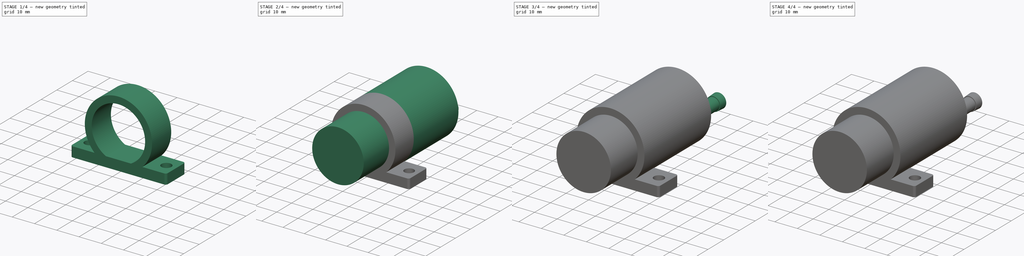
[diagram: build sequence overview — one tinted view per stage of 4, left to right]
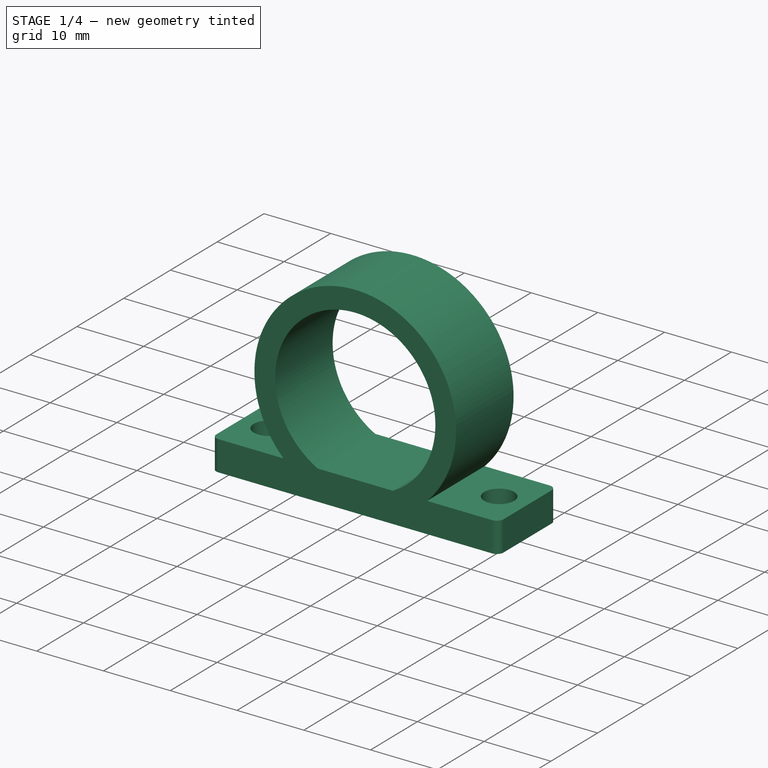
[diagram: stage 1 of 4 — iso view after this stage's code; geometry added in this stage tinted green]
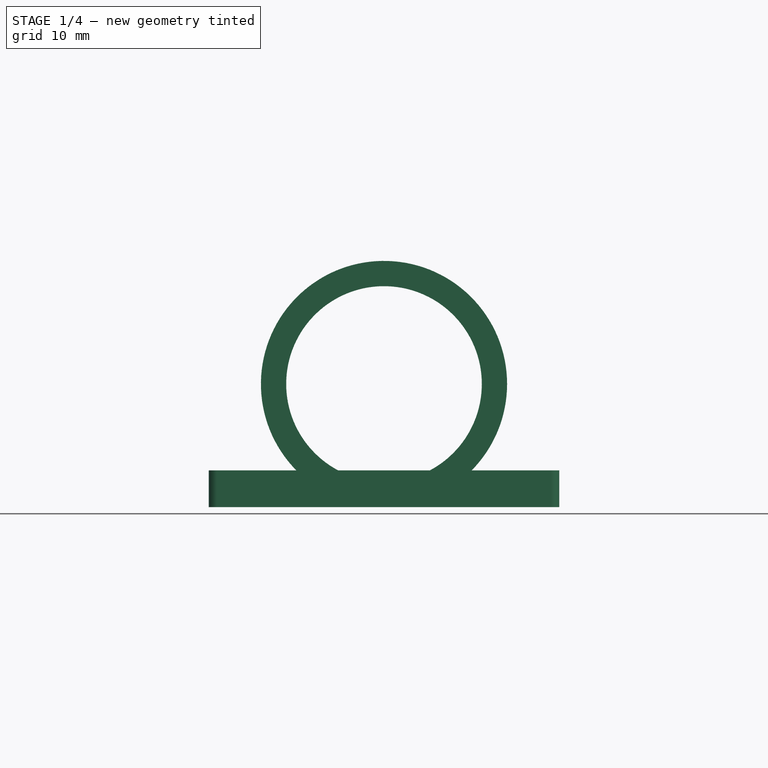
[diagram: stage 1 of 4 — front view after this stage's code; geometry added in this stage tinted green]
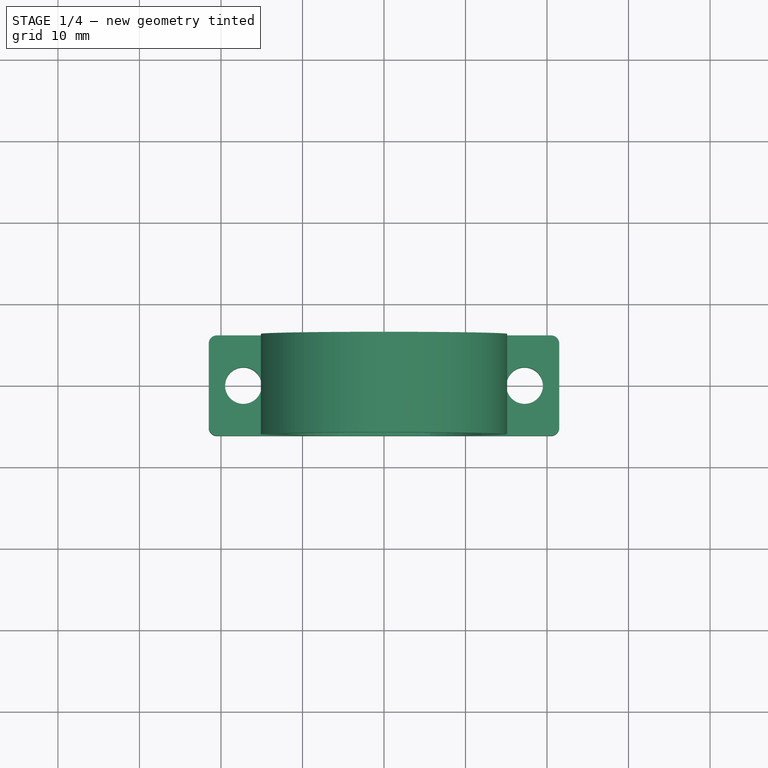
[diagram: stage 1 of 4 — top view after this stage's code; geometry added in this stage tinted green]
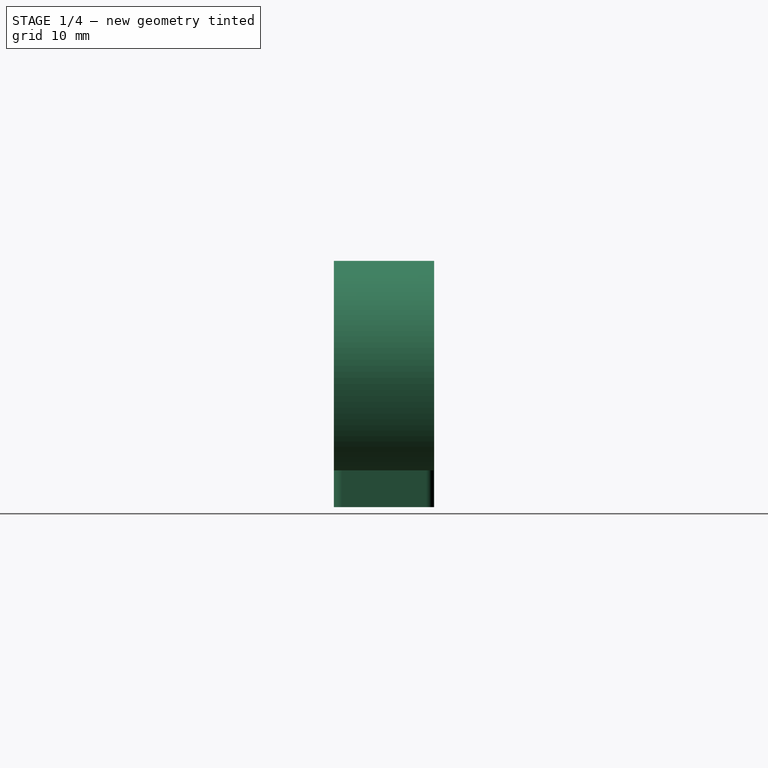
[diagram: stage 1 of 4 — right view after this stage's code; geometry added in this stage tinted green]
FCSTD DOCUMENT  (FreeCAD 0.22R36996 (Git))
Label: CrocSee 12V DC Diaphragm Transfer Pump 1.3 LPM
License: Creative Commons Attribution 4.0
LicenseURL: https://creativecommons.org/licenses/by/4.0/
objects: Sketcher::SketchObject×10, PartDesign::Pad×10, PartDesign::Body×1, Spreadsheet::Sheet×1
note: 31 computed .brp shape members not serialized (recipe doc carries the construction recipe); baked Part::Feature solids carry a one-line shape summary decoded from their .brp

FEATURE [Sketcher::SketchObject] Sketch  label="Bracket Base Sketch"
  AttachmentSupport = -> [XY_Plane]
  FullyConstrained = true
  MapMode = 5
  expr: Constraints[19] = <<config>>.CrocSeeBracketLength
  expr: Constraints[20] = <<config>>.CrocSeeBracketWidth
  expr: Constraints[21] = <<config>>.CrocSeeBracketCornerRadius
  expr: Constraints[23] = <<config>>.CrocSeeBracketMountingHoleDiameter
  expr: Constraints[26] = <<config>>.CrocSeeBracketMountingHoleSpacing
  sketch-geometry (12):
    g0: LineSegment StartX=-21.5 StartY=5.15 StartZ=0 EndX=-21.5 EndY=-5.15 EndZ=0
    g1: LineSegment StartX=-20.5 StartY=-6.15 StartZ=0 EndX=20.5 EndY=-6.15 EndZ=0
    g2: LineSegment StartX=21.5 StartY=-5.15 StartZ=0 EndX=21.5 EndY=5.15 EndZ=0
    g3: LineSegment StartX=20.5 StartY=6.15 StartZ=0 EndX=-20.5 EndY=6.15 EndZ=0
    g4: ArcOfCircle CenterX=-20.5 CenterY=5.15 CenterZ=0 NormalX=0 NormalY=0 NormalZ=1 AngleXU=0 Radius=1 StartAngle=1.5708 EndAngle=3.14159
    g5: ArcOfCircle CenterX=-20.5 CenterY=-5.15 CenterZ=0 NormalX=0 NormalY=0 NormalZ=1 AngleXU=0 Radius=1 StartAngle=3.14159 EndAngle=4.71239
    g6: ArcOfCircle CenterX=20.5 CenterY=-5.15 CenterZ=0 NormalX=0 NormalY=0 NormalZ=1 AngleXU=0 Radius=1 StartAngle=4.71239 EndAngle=6.28319
    g7: ArcOfCircle CenterX=20.5 CenterY=5.15 CenterZ=0 NormalX=0 NormalY=0 NormalZ=1 AngleXU=0 Radius=1 StartAngle=3e-16 EndAngle=1.5708
    g8: GeomPoint X=-21.5 Y=6.15 Z=0
    g9: GeomPoint X=21.5 Y=-6.15 Z=0
    g10: Circle CenterX=-17.25 CenterY=0 CenterZ=0 NormalX=0 NormalY=0 NormalZ=1 AngleXU=0 Radius=2.25
    g11: Circle CenterX=17.25 CenterY=0 CenterZ=0 NormalX=0 NormalY=0 NormalZ=1 AngleXU=0 Radius=2.25
  constraints (28):
    c: Tangent(g0,g4) = -1.5708
    c: Tangent(g0,g5) = -1.5708
    c: Tangent(g1,g5) = -1.5708
    c: Tangent(g1,g6) = -1.5708
    c: Tangent(g2,g6) = -1.5708
    c: Tangent(g2,g7) = -1.5708
    c: Tangent(g3,g7) = -1.5708
    c: Tangent(g3,g4) = -1.5708
    c: Vertical(g0)
    c: Vertical(g2)
    c: Horizontal(g1)
    c: Horizontal(g3)
    c: Equal(g4,g5)
    c: Equal(g5,g6)
    c: Equal(g6,g7)
    c: PointOnObject(g8,g0)
    c: PointOnObject(g8,g3)
    c: PointOnObject(g9,g1)
    c: PointOnObject(g9,g2)
    c: Distance(g0,g2) = 43
    c: Distance(g1,g3) = 12.3
    c: Radius(g5) = 1
    c: Symmetric(g4,g6,g-1)
    c: Radius(g10) = 2.25
    c: PointOnObject(g10,g-1)
    c: Symmetric(g11,g10,g-1)
    c: DistanceX(g10,g11) = 34.5
    c: Equal(g11,g10)
FEATURE [PartDesign::Pad] Pad  label="Bracket Base"
  Direction = (0,0,1)
  Length = 4.5
  Length2 = 10
  Profile = -> Sketch
  ReferenceAxis = -> Sketch [N_Axis]
  Suppressed = false
  Type = 0
  expr: Length = <<config>>.CrocSeeBracketBaseThickness
FEATURE [Sketcher::SketchObject] Sketch001  label="Bracket Ring Sketch"
  AttachmentOffset = pos=(0,0,6.15) rot=(0,0,1;0rad)
  AttachmentSupport = -> [XZ_Plane]
  FullyConstrained = true
  MapMode = 5
  Placement = pos=(0,-6.15,1.4e-15) rot=(1,0,0;1.5708rad)
  expr: .AttachmentOffset.Base.z = <<config>>.CrocSeeBracketWidth / 2
  expr: Constraints[0] = <<config>>.CrocSeeBracketRingOuterDiameter
  expr: Constraints[4] = <<config>>.CrocSeeBracketRingInnerDiameter
  sketch-geometry (4):
    g0: Circle CenterX=0 CenterY=15.1 CenterZ=0 NormalX=0 NormalY=0 NormalZ=1 AngleXU=0 Radius=15.1
    g1: GeomPoint X=0 Y=0 Z=0
    g2: Circle CenterX=0 CenterY=15.1 CenterZ=0 NormalX=0 NormalY=0 NormalZ=1 AngleXU=0 Radius=12
    g3: GeomPoint X=0 Y=15.1 Z=0
  constraints (7):
    c: Radius(g0) = 15.1
    c: PointOnObject(g0,g-2)
    c: PointOnObject(g1,g0)
    c: Coincident(g-1,g1)
    c: Radius(g2) = 12
    c: Coincident(g2,g0)
    c: Coincident(g3,g0)
FEATURE [PartDesign::Pad] Pad001  label="Bracket Ring"
  BaseFeature = -> Pad
  Direction = (0,-1,2e-16)
  Length = 12.3
  Length2 = 10
  Profile = -> Sketch001
  ReferenceAxis = -> Sketch001 [N_Axis]
  Reversed = true
  Suppressed = false
  Type = 0
  expr: Length = <<config>>.CrocSeeBracketWidth
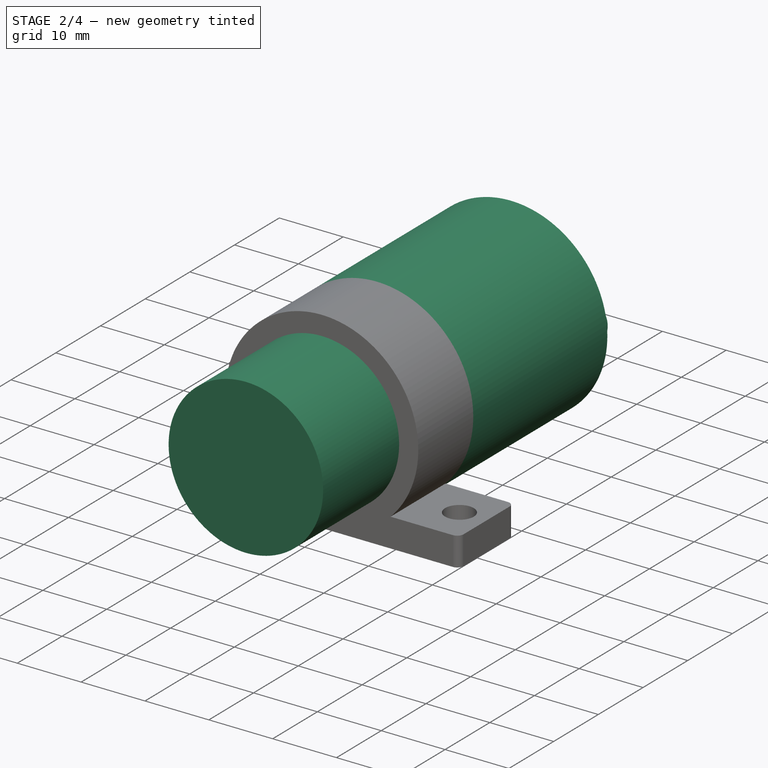
[diagram: stage 2 of 4 — iso view after this stage's code; geometry added in this stage tinted green]
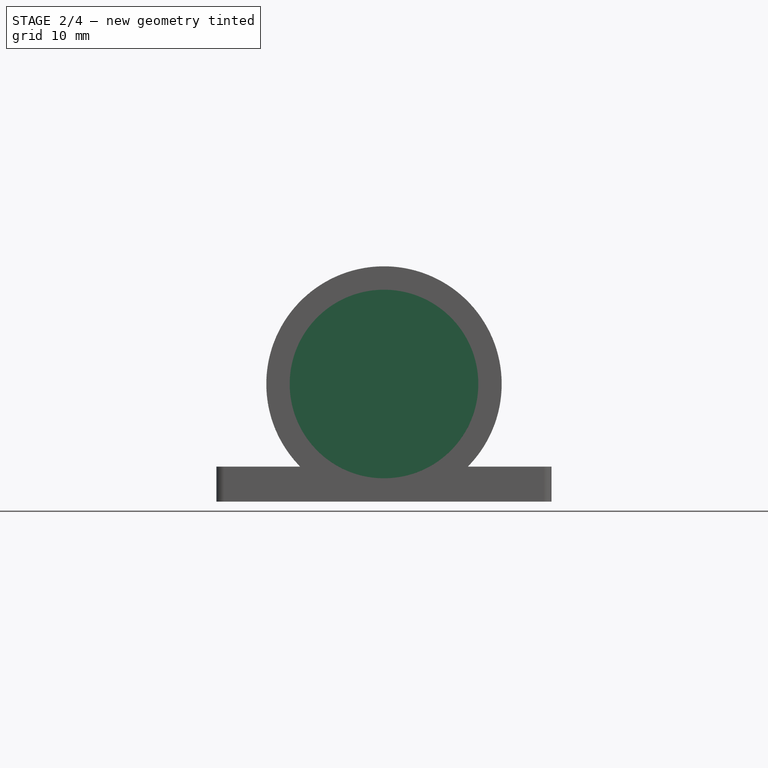
[diagram: stage 2 of 4 — front view after this stage's code; geometry added in this stage tinted green]
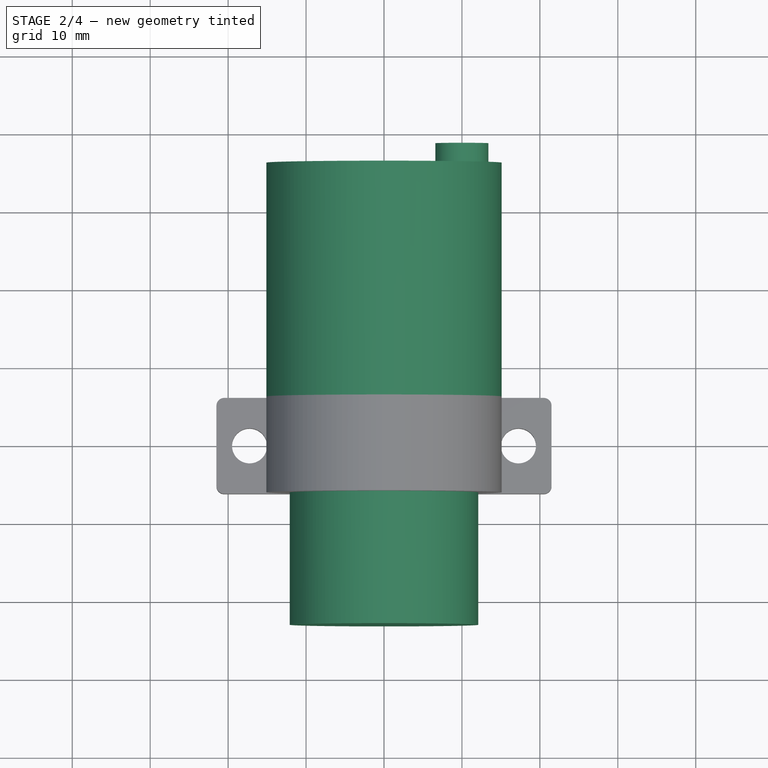
[diagram: stage 2 of 4 — top view after this stage's code; geometry added in this stage tinted green]
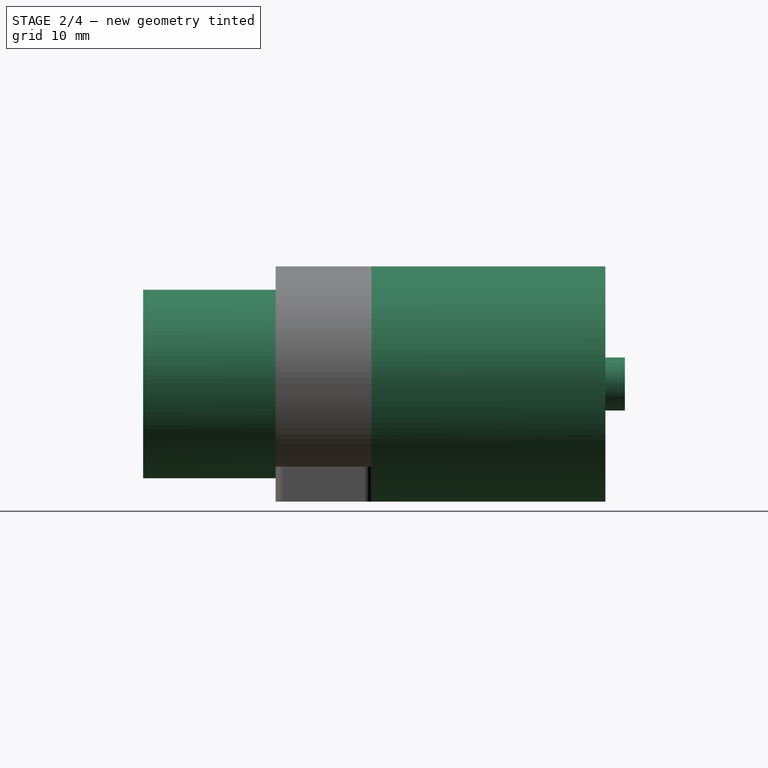
[diagram: stage 2 of 4 — right view after this stage's code; geometry added in this stage tinted green]
FEATURE [Sketcher::SketchObject] Sketch002  label="Body Part 1 Sketch"
  AttachmentOffset = pos=(0,0,23.15) rot=(0,0,1;0rad)
  AttachmentSupport = -> [XZ_Plane]
  ExternalGeometry = -> [Sketch001]
  FullyConstrained = true
  MapMode = 5
  Placement = pos=(0,-23.15,5.1e-15) rot=(1,0,0;1.5708rad)
  expr: .AttachmentOffset.Base.z = <<config>>.CrocSeeBracketOffset
  expr: Constraints[0] = <<config>>.CrocSeeBodyPart1Radius
  sketch-geometry (1):
    g0: Circle CenterX=0 CenterY=15.1 CenterZ=0 NormalX=0 NormalY=0 NormalZ=1 AngleXU=0 Radius=12.1
  constraints (2):
    c: Radius(g0) = 12.1
    c: Coincident(g0,g-3)
FEATURE [PartDesign::Pad] Pad002  label="Body Part 1"
  BaseFeature = -> Pad001
  Direction = (0,-1,2e-16)
  Length = 29.3
  Length2 = 10
  Profile = -> Sketch002
  ReferenceAxis = -> Sketch002 [N_Axis]
  Reversed = true
  Suppressed = false
  Type = 0
  expr: Length = <<config>>.CrocSeeBodyPart1Length
FEATURE [Sketcher::SketchObject] Sketch003  label="Body Part 2 Sketch"
  AttachmentOffset = pos=(0,0,-6.15) rot=(0,0,1;0rad)
  AttachmentSupport = -> [XZ_Plane]
  ExternalGeometry = -> [Sketch001]
  FullyConstrained = true
  MapMode = 5
  Placement = pos=(0,6.15,-1.4e-15) rot=(1,0,0;1.5708rad)
  expr: .AttachmentOffset.Base.z = -<<config>>.CrocSeeBracketWidth / 2
  expr: Constraints[0] = <<config>>.CrocSeeBodyPart2Radius
  sketch-geometry (1):
    g0: Circle CenterX=0 CenterY=15.1 CenterZ=0 NormalX=0 NormalY=0 NormalZ=1 AngleXU=0 Radius=15.1
  constraints (2):
    c: Radius(g0) = 15.1
    c: Coincident(g0,g-3)
FEATURE [PartDesign::Pad] Pad003  label="Body Part 2"
  BaseFeature = -> Pad002
  Direction = (0,-1,2e-16)
  Length = 30
  Length2 = 10
  Profile = -> Sketch003
  ReferenceAxis = -> Sketch003 [N_Axis]
  Reversed = true
  Suppressed = false
  Type = 0
  expr: Length = <<config>>.CrocSeeBodyPart2Length
FEATURE [Sketcher::SketchObject] Sketch004  label="Body Connector 2 Base Sketch"
  AttachmentOffset = pos=(0,0,-36.15) rot=(0,0,1;0rad)
  AttachmentSupport = -> [XZ_Plane]
  ExternalGeometry = -> [Sketch001]
  FullyConstrained = true
  MapMode = 5
  Placement = pos=(0,36.15,-8e-15) rot=(1,0,0;1.5708rad)
  expr: .AttachmentOffset.Base.z = -<<config>>.CrocSeeBracketWidth / 2 - <<config>>.CrocSeeBodyPart2Length
  expr: Constraints[0] = <<config>>.CrocSeeBodyConnector2BaseOuterDiameter
  expr: Constraints[2] = <<config>>.CrocSeeBodyConnector2BaseInnerDiameter
  sketch-geometry (2):
    g0: Circle CenterX=0 CenterY=15.1 CenterZ=0 NormalX=0 NormalY=0 NormalZ=1 AngleXU=0 Radius=4.1
    g1: Circle CenterX=0 CenterY=15.1 CenterZ=0 NormalX=0 NormalY=0 NormalZ=1 AngleXU=0 Radius=1.3
  constraints (4):
    c: Radius(g0) = 4.1
    c: Coincident(g0,g-3)
    c: Radius(g1) = 1.3
    c: Coincident(g1,g0)
FEATURE [Sketcher::SketchObject] Sketch005  label="Body Connector 1 Base Sketch"
  AttachmentOffset = pos=(0,0,-36.15) rot=(0,0,1;0rad)
  AttachmentSupport = -> [XZ_Plane]
  ExternalGeometry = -> [Sketch001]
  FullyConstrained = true
  MapMode = 5
  Placement = pos=(0,36.15,-8e-15) rot=(1,0,0;1.5708rad)
  expr: .AttachmentOffset.Base.z = -<<config>>.CrocSeeBracketWidth / 2 - <<config>>.CrocSeeBodyPart2Length
  expr: Constraints[0] = <<config>>.CrocSeeBodyConnector1BaseInnerDiameter
  expr: Constraints[2] = <<config>>.CrocSeeBodyConnector1BaseOuterDiameter
  expr: Constraints[8] = <<config>>.CrocSeeBodyConnector1DistanceFromCenter
  sketch-geometry (4):
    g0: GeomPoint X=10 Y=15.1 Z=0
    g1: Circle CenterX=10 CenterY=15.1 CenterZ=0 NormalX=0 NormalY=0 NormalZ=1 AngleXU=0 Radius=1.7
    g2: Circle CenterX=10 CenterY=15.1 CenterZ=0 NormalX=0 NormalY=0 NormalZ=1 AngleXU=0 Radius=3.4
    g3: LineSegment StartX=12 StartY=15.1 StartZ=0 EndX=-12 EndY=15.1 EndZ=0
  constraints (10):
    c: Radius(g1) = 1.7
    c: Coincident(g1,g0)
    c: Radius(g2) = 3.4
    c: Coincident(g2,g0)
    c: PointOnObject(g-3,g3)
    c: PointOnObject(g3,g-4)
    c: PointOnObject(g3,g-4)
    c: PointOnObject(g0,g3)
    c: DistanceX(g-4,g0) = 10
    c: Horizontal(g3)
FEATURE [PartDesign::Pad] Pad004  label="Body Connector 1 Base"
  BaseFeature = -> Pad003
  Direction = (0,-1,2e-16)
  Length = 2.5
  Length2 = 10
  Profile = -> Sketch005
  ReferenceAxis = -> Sketch005 [N_Axis]
  Reversed = true
  Suppressed = false
  Type = 0
  expr: Length = <<config>>.CrocSeeBodyConnector1BaseHeight
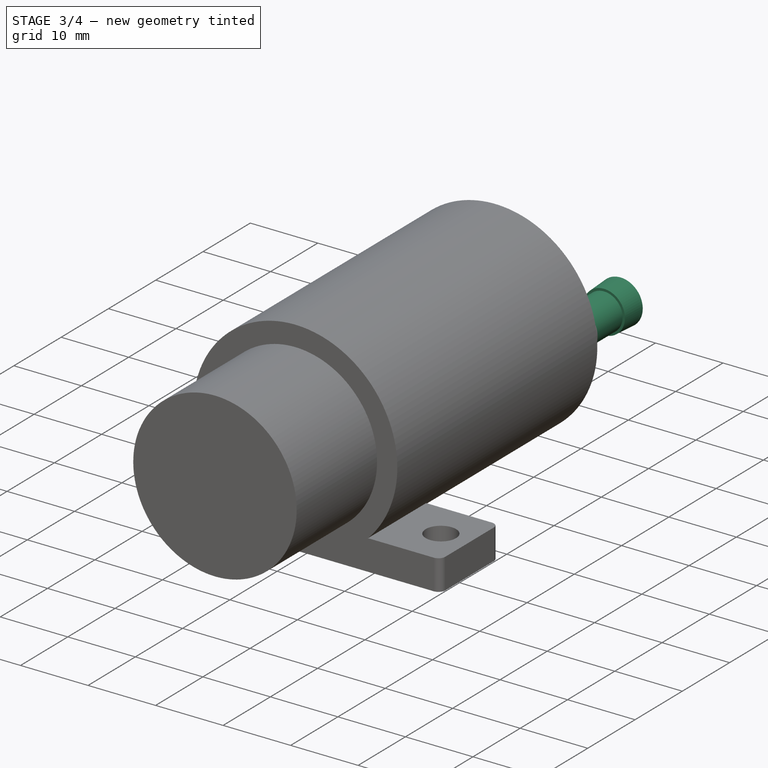
[diagram: stage 3 of 4 — iso view after this stage's code; geometry added in this stage tinted green]
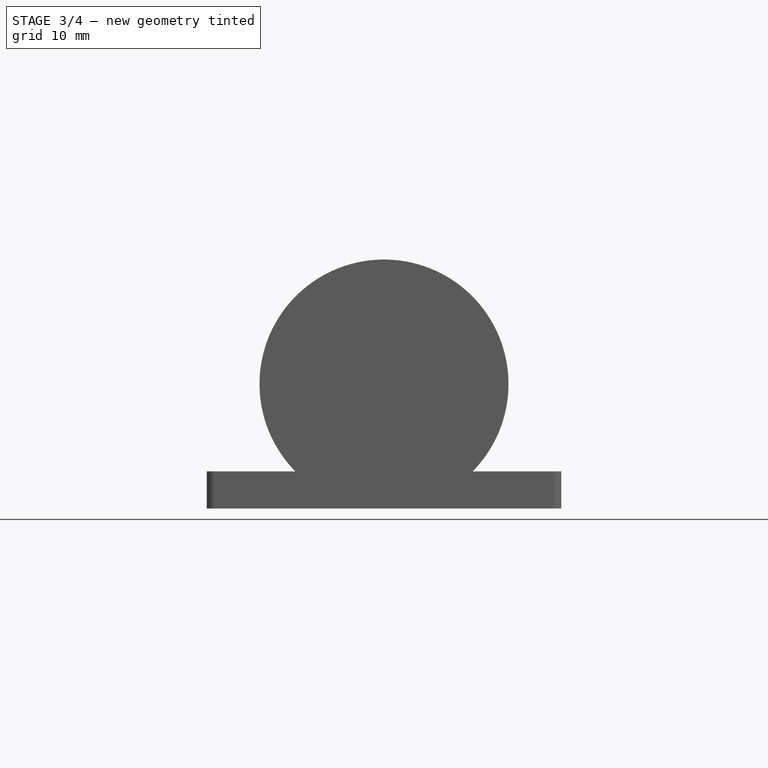
[diagram: stage 3 of 4 — front view after this stage's code; geometry added in this stage tinted green]
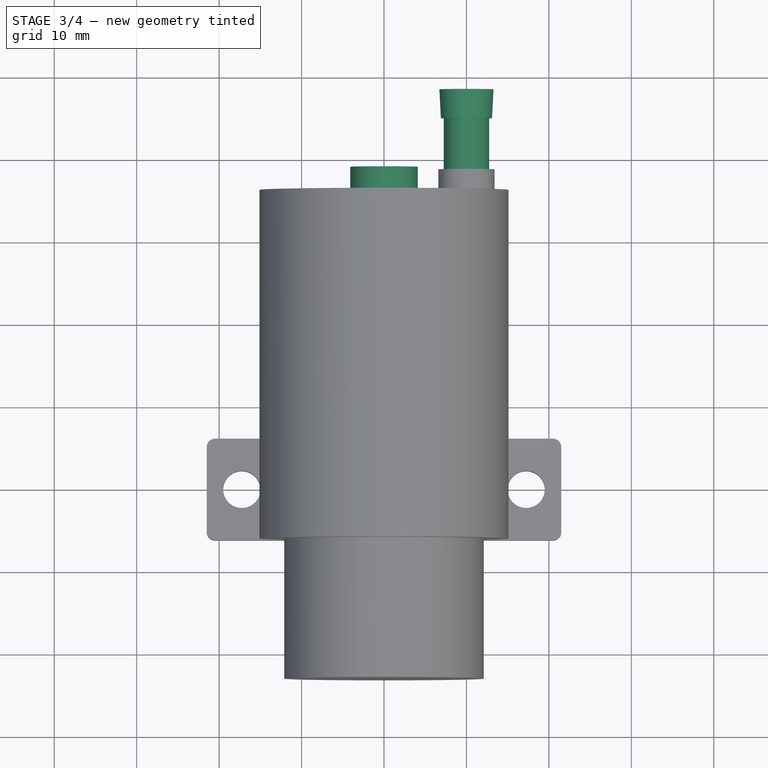
[diagram: stage 3 of 4 — top view after this stage's code; geometry added in this stage tinted green]
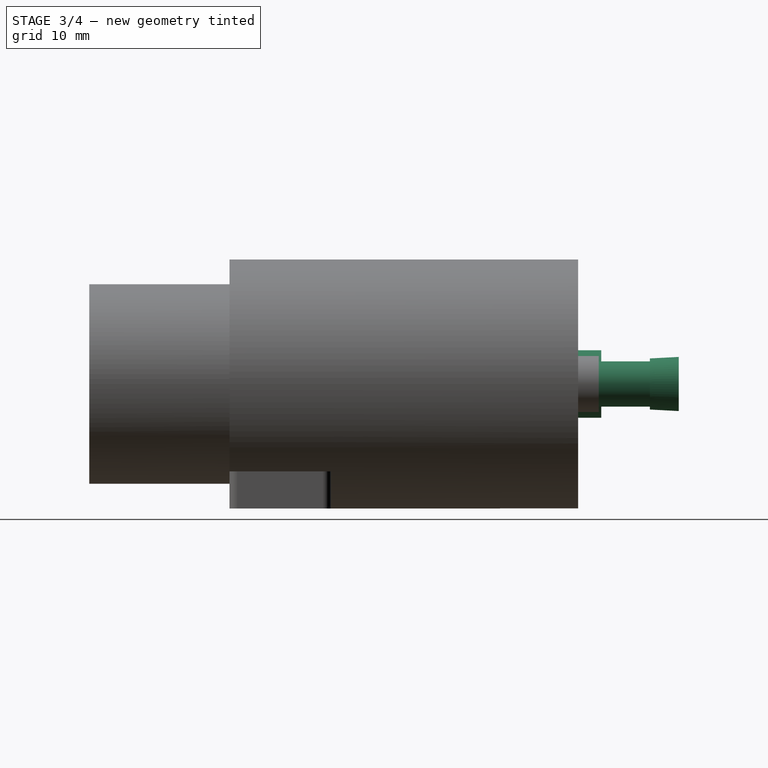
[diagram: stage 3 of 4 — right view after this stage's code; geometry added in this stage tinted green]
FEATURE [PartDesign::Pad] Pad005  label="Body Connector 2 Base"
  BaseFeature = -> Pad004
  Direction = (0,-1,2e-16)
  Length = 2.8
  Length2 = 10
  Profile = -> Sketch004
  ReferenceAxis = -> Sketch004 [N_Axis]
  Reversed = true
  Suppressed = false
  Type = 0
  expr: Length = <<config>>.CrocSeeBodyConnector2BaseHeight
FEATURE [Sketcher::SketchObject] Sketch006  label="Body Connector 1 Part 2 Sketch"
  AttachmentOffset = pos=(0,0,-38.65) rot=(0,0,1;0rad)
  AttachmentSupport = -> [XZ_Plane]
  ExternalGeometry = -> [Sketch001,Sketch005]
  FullyConstrained = true
  MapMode = 5
  Placement = pos=(0,38.65,-8.6e-15) rot=(1,0,0;1.5708rad)
  expr: .AttachmentOffset.Base.z = -<<config>>.CrocSeeBracketWidth / 2 - <<config>>.CrocSeeBodyPart2Length - <<config>>.CrocSeeBodyConnector1BaseHeight
  expr: Constraints[0] = <<config>>.CrocSeeBodyConnector1Part2OuterDiameter
  expr: Constraints[1] = <<config>>.CrocSeeBodyConnector1Part2InnerDiameter
  sketch-geometry (2):
    g0: Circle CenterX=10 CenterY=15.1 CenterZ=0 NormalX=0 NormalY=0 NormalZ=1 AngleXU=0 Radius=2.75
    g1: Circle CenterX=10 CenterY=15.1 CenterZ=0 NormalX=0 NormalY=0 NormalZ=1 AngleXU=0 Radius=1.75
  constraints (4):
    c: Radius(g0) = 2.75
    c: Radius(g1) = 1.75
    c: Coincident(g0,g-4)
    c: Coincident(g1,g0)
FEATURE [Sketcher::SketchObject] Sketch007  label="Body Connector Part 3 Sketch"
  AttachmentOffset = pos=(0,0,-44.85) rot=(0,0,1;0rad)
  AttachmentSupport = -> [XZ_Plane]
  ExternalGeometry = -> [Sketch005]
  FullyConstrained = true
  MapMode = 5
  Placement = pos=(0,44.85,-1e-14) rot=(1,0,0;1.5708rad)
  expr: .AttachmentOffset.Base.z = -<<config>>.CrocSeeBracketWidth / 2 - <<config>>.CrocSeeBodyPart2Length - <<config>>.CrocSeeBodyConnector1BaseHeight - <<config>>.CrocSeeBodyConnector1Part2Height
  sketch-geometry (2):
    g0: Circle CenterX=10 CenterY=15.1 CenterZ=0 NormalX=0 NormalY=0 NormalZ=1 AngleXU=0 Radius=1.75
    g1: Circle CenterX=10 CenterY=15.1 CenterZ=0 NormalX=0 NormalY=0 NormalZ=1 AngleXU=0 Radius=3.1
  constraints (4):
    c: Radius(g0) = 1.75
    c: Coincident(g0,g-3)
    c: Radius(g1) = 3.1
    c: Coincident(g1,g0)
FEATURE [Sketcher::SketchObject] Sketch008  label="Body Connector 2 Sketch 2"
  AttachmentOffset = pos=(0,0,-38.95) rot=(0,0,1;0rad)
  AttachmentSupport = -> [XZ_Plane]
  ExternalGeometry = -> [Sketch001]
  FullyConstrained = true
  MapMode = 5
  Placement = pos=(0,38.95,-8.6e-15) rot=(1,0,0;1.5708rad)
  expr: .AttachmentOffset.Base.z = -<<config>>.CrocSeeBracketWidth / 2 - <<config>>.CrocSeeBodyPart2Length - <<config>>.CrocSeeBodyConnector2BaseHeight
  expr: Constraints[0] = <<config>>.CrocSeeBodyConnector2Part2InnerDiameter
  expr: Constraints[2] = <<config>>.CrocSeeBodyConnector2Part2OuterDiameter
  sketch-geometry (2):
    g0: Circle CenterX=0 CenterY=15.1 CenterZ=0 NormalX=0 NormalY=0 NormalZ=1 AngleXU=0 Radius=1.4
    g1: Circle CenterX=0 CenterY=15.1 CenterZ=0 NormalX=0 NormalY=0 NormalZ=1 AngleXU=0 Radius=2.75
  constraints (4):
    c: Radius(g0) = 1.4
    c: Coincident(g0,g-3)
    c: Radius(g1) = 2.75
    c: Coincident(g1,g0)
FEATURE [Sketcher::SketchObject] Sketch009  label="Body Connector 2 Sketch 3"
  AttachmentOffset = pos=(0,0,-43.25) rot=(0,0,1;0rad)
  AttachmentSupport = -> [XZ_Plane]
  ExternalGeometry = -> [Sketch001]
  FullyConstrained = true
  MapMode = 5
  Placement = pos=(0,43.25,-9.6e-15) rot=(1,0,0;1.5708rad)
  expr: .AttachmentOffset.Base.z = -<<config>>.CrocSeeBracketWidth / 2 - <<config>>.CrocSeeBodyPart2Length - <<config>>.CrocSeeBodyConnector2BaseHeight - <<config>>.CrocSeeBodyConnector2Part2Height
  expr: Constraints[0] = <<config>>.CrocSeeBodyConnector2Part3InnerDiameter
  expr: Constraints[2] = <<config>>.CrocSeeBodyConnector2Part3OuterDiameter
  sketch-geometry (2):
    g0: Circle CenterX=0 CenterY=15.1 CenterZ=0 NormalX=0 NormalY=0 NormalZ=1 AngleXU=0 Radius=1.4
    g1: Circle CenterX=0 CenterY=15.1 CenterZ=0 NormalX=0 NormalY=0 NormalZ=1 AngleXU=0 Radius=3.1
  constraints (4):
    c: Radius(g0) = 1.4
    c: Coincident(g0,g-3)
    c: Radius(g1) = 3.1
    c: Coincident(g1,g0)
FEATURE [PartDesign::Pad] Pad006  label="Body Connector 1 Part 2"
  BaseFeature = -> Pad005
  Direction = (0,-1,2e-16)
  Length = 6.2
  Length2 = 10
  Profile = -> Sketch006
  ReferenceAxis = -> Sketch006 [N_Axis]
  Reversed = true
  Suppressed = false
  Type = 0
  expr: Length = <<config>>.CrocSeeBodyConnector1Part2Height
FEATURE [PartDesign::Pad] Pad007  label="Body Connector 1 Part 3"
  BaseFeature = -> Pad006
  Direction = (0,-1,2e-16)
  Length = 3.5
  Length2 = 10
  Profile = -> Sketch007
  ReferenceAxis = -> Sketch007 [N_Axis]
  Reversed = true
  Suppressed = false
  TaperAngle = -3
  Type = 0
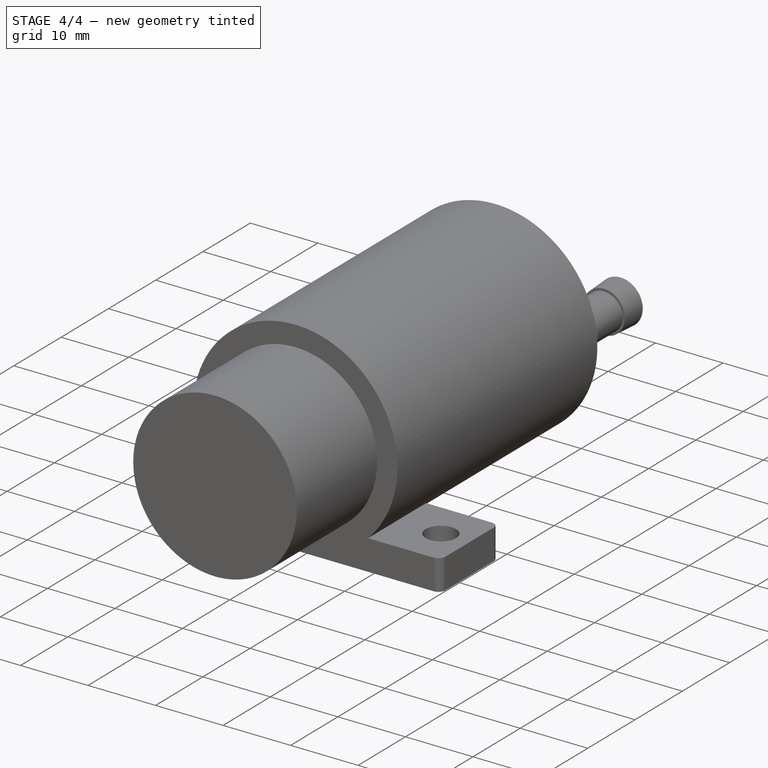
[diagram: stage 4 of 4 — iso view after this stage's code; geometry added in this stage tinted green]
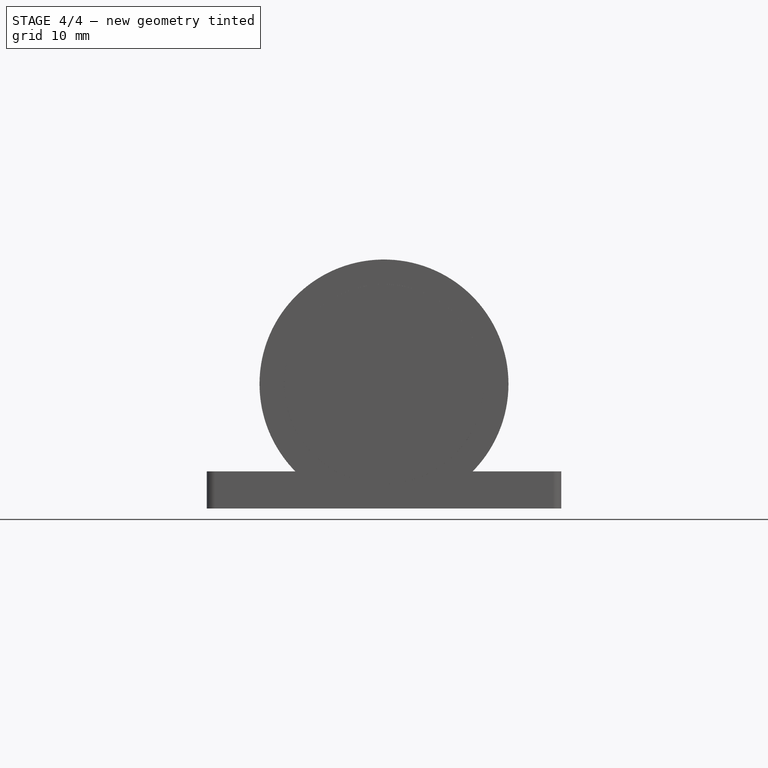
[diagram: stage 4 of 4 — front view after this stage's code; geometry added in this stage tinted green]
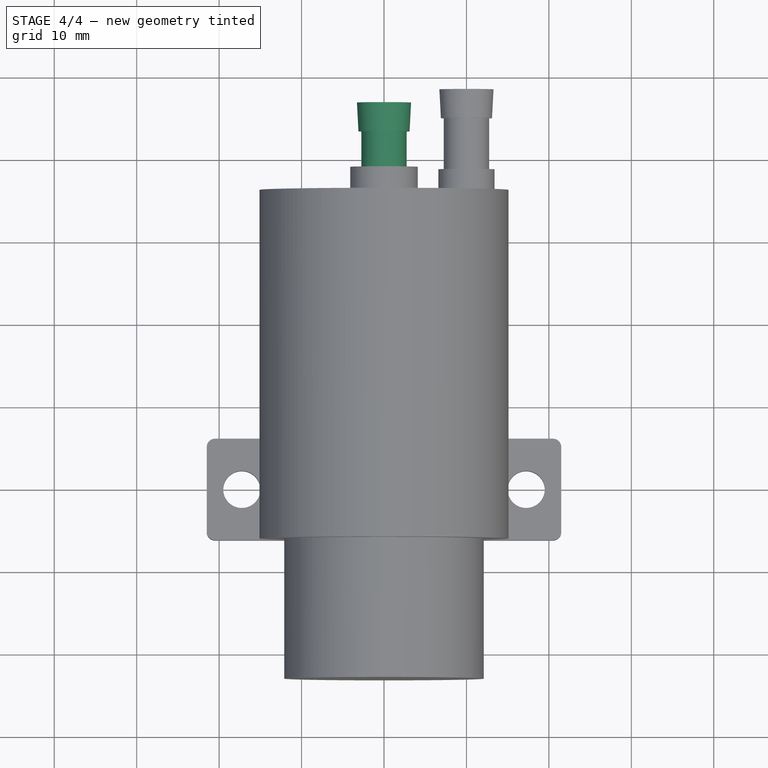
[diagram: stage 4 of 4 — top view after this stage's code; geometry added in this stage tinted green]
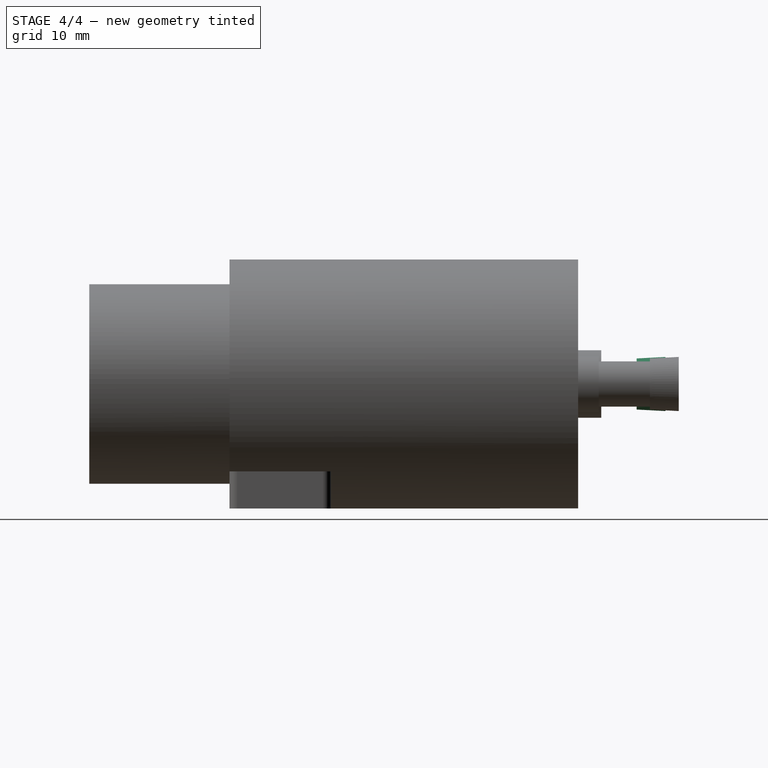
[diagram: stage 4 of 4 — right view after this stage's code; geometry added in this stage tinted green]
FEATURE [PartDesign::Pad] Pad008  label="Body Connector 2 Pad 2"
  BaseFeature = -> Pad007
  Direction = (0,-1,2e-16)
  Length = 4.3
  Length2 = 10
  Profile = -> Sketch008
  ReferenceAxis = -> Sketch008 [N_Axis]
  Reversed = true
  Suppressed = false
  Type = 0
  expr: Length = <<config>>.CrocSeeBodyConnector2Part2Height
FEATURE [PartDesign::Pad] Pad009  label="Body Connector 2 Pad 3"
  BaseFeature = -> Pad008
  Direction = (0,-1,2e-16)
  Length = 3.5
  Length2 = 10
  Profile = -> Sketch009
  ReferenceAxis = -> Sketch009 [N_Axis]
  Reversed = true
  Suppressed = false
  TaperAngle = -3
  Type = 0
  expr: Length = <<config>>.CrocSeeBodyConnector2Part3Height
FEATURE [PartDesign::Body] Body
  Group = -> [Sketch,Pad,Sketch001,Pad001,Sketch002,Pad002,Sketch003,Pad003,Sketch004,Sketch005,Pad004,Pad005,Sketch006,Pad006,Sketch007,Pad007,Sketch008,Pad008,Sketch009,Pad009]
  Origin = -> Origin
  Tip = -> Pad009
FEATURE [Spreadsheet::Sheet] Spreadsheet  label="config"
  cells = A2='CrocSeeBracketWidth; B2(CrocSeeBracketWidth)=12.3; A3='CrocSeeBracketLength; B3(CrocSeeBracketLength)=43; A4='CrocSeeBracketCornerRadius; B4(CrocSeeBracketCornerRadius)=1; A5='CrocSeeBracketMountingHoleSpacing; B5(CrocSeeBracketMountingHoleSpacing)=34.5; A6='CrocSeeBracketMountingHoleDiameter; B6(CrocSeeBracketMountingHoleDiameter)=2.25; A7='CrocSeeBracketBaseThickness; B7(CrocSeeBracketBaseThickness)=4.5; A8='CrocSeeBracketRingInnerDiameter; B8(CrocSeeBracketRingInnerDiameter)=12; A9='CrocSeeBracketRingOuterDiameter; B9(CrocSeeBracketRingOuterDiameter)=15.1; A10='CrocSeeBracketOffset; B10(CrocSeeBracketOffset)==CrocSeeBodyPart1Length - CrocSeeBracketWidth / 2; A11='CrocSeeBodyPart1Radius; B11(CrocSeeBodyPart1Radius)=12.1; A12='CrocSeeBodyPart1Length; B12(CrocSeeBodyPart1Length)=29.3; A13='CrocSeeBodyPart2Radius; B13(CrocSeeBodyPart2Radius)=15.1; A14='CrocSeeBodyPart2Length; B14(CrocSeeBodyPart2Length)=30; A15='CrocSeeBodyConnector1BaseHeight; B15(CrocSeeBodyConnector1BaseHeight)=2.5; A16='CrocSeeBodyConnector1BaseInnerDiameter; B16(CrocSeeBodyConnector1BaseInnerDiameter)=1.7; A17='CrocSeeBodyConnector1BaseOuterDiameter; B17(CrocSeeBodyConnector1BaseOuterDiameter)=3.4; A18='CrocSeeBodyConnector1DistanceFromCenter; B18(CrocSeeBodyConnector1DistanceFromCenter)=10; A19='CrocSeeBodyConnector2BaseHeight; B19(CrocSeeBodyConnector2BaseHeight)=2.8; A20='CrocSeeBodyConnector2BaseInnerDiameter; B20(CrocSeeBodyConnector2BaseInnerDiameter)=1.3; A21='CrocSeeBodyConnector2BaseOuterDiameter; B21(CrocSeeBodyConnector2BaseOuterDiameter)=4.1; A22='CrocSeeBodyConnector1Part2Height; B22(CrocSeeBodyConnector1Part2Height)=6.2; A23='CrocSeeBodyConnector1Part2InnerDiameter; B23(CrocSeeBodyConnector1Part2InnerDiameter)=1.75; A24='CrocSeeBodyConnector1Part2OuterDiameter; B24(CrocSeeBodyConnector1Part2OuterDiameter)=2.75; A25='CrocSeeBodyConnector2Part2Height; B25(CrocSeeBodyConnector2Part2Height)=4.3; A26='CrocSeeBodyConnector2Part2InnerDiameter; B26(CrocSeeBodyConnector2Part2InnerDiameter)=1.4; A27='CrocSeeBodyConnector2Part2OuterDiameter; B27(CrocSeeBodyConnector2Part2OuterDiameter)=2.75; A28='CrocSeeBodyConnector1Part3InnerDiameter; B28(CrocSeeBodyConnector1Part3InnerDiameter)=3.5; A29='CrocSeeBodyConnector1Part3InnerDiameter; B29(CrocSeeBodyConnector1Part3InnerDiametertor1Part3InnerDiameter)=1.75; A30='CrocSeeBodyConnector1Part3OuterDiameter; B30(CrocSeeBodyConnector1Part3OuterDiameter)=3.1; A31='CrocSeeBodyConnector2Part3Height; B31(CrocSeeBodyConnector2Part3Height)=3.5; A32='CrocSeeBodyConnector2Part3InnerDiameter; B32(CrocSeeBodyConnector2Part3InnerDiameter)=1.4; A33='CrocSeeBodyConnector2Part3OuterDiameter; B33(CrocSeeBodyConnector2Part3OuterDiameter)=3.1
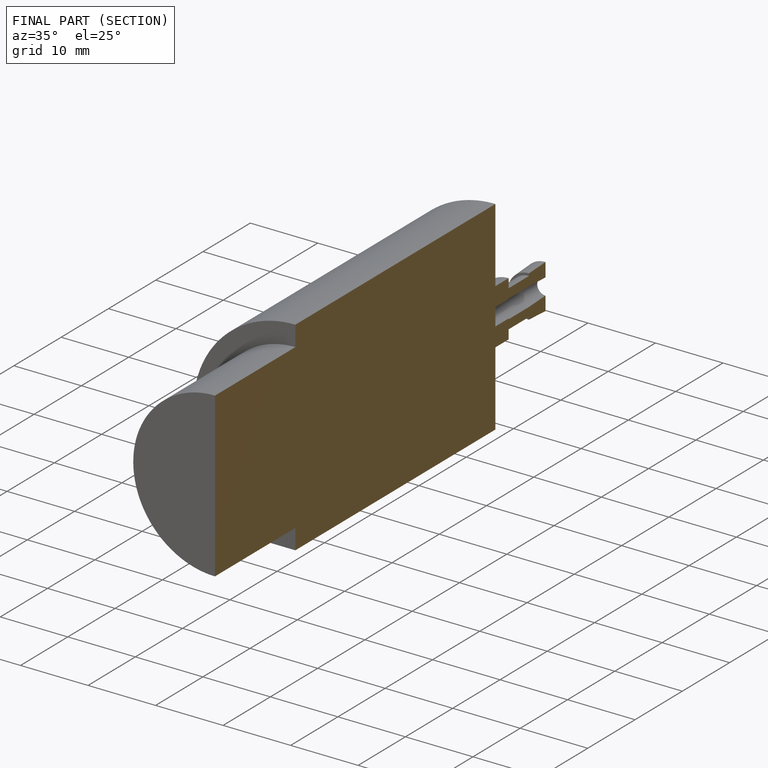
[diagram: finished part — half-section view (interior)]
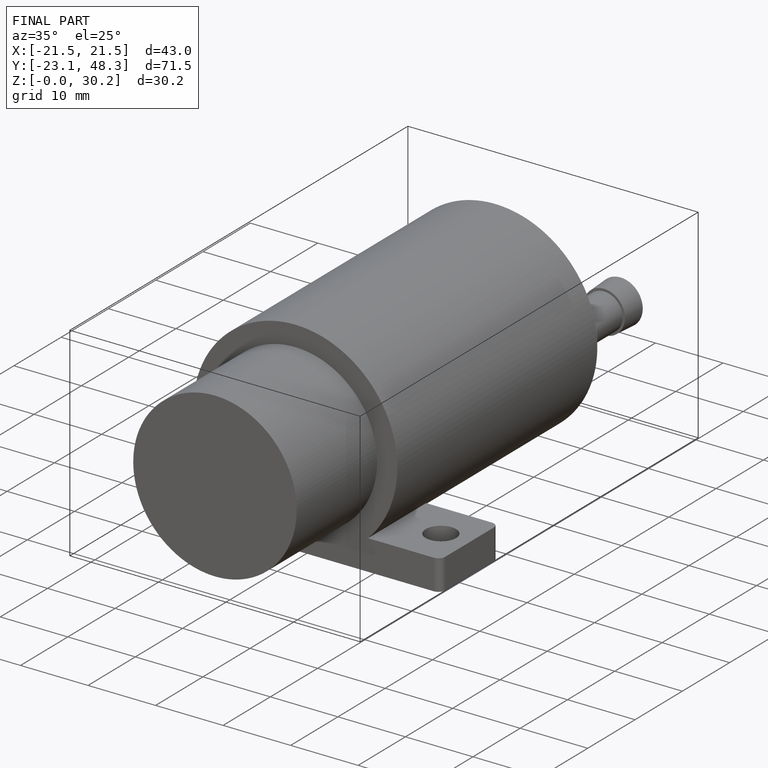
[diagram: finished part — iso view with bounding-box wireframe]
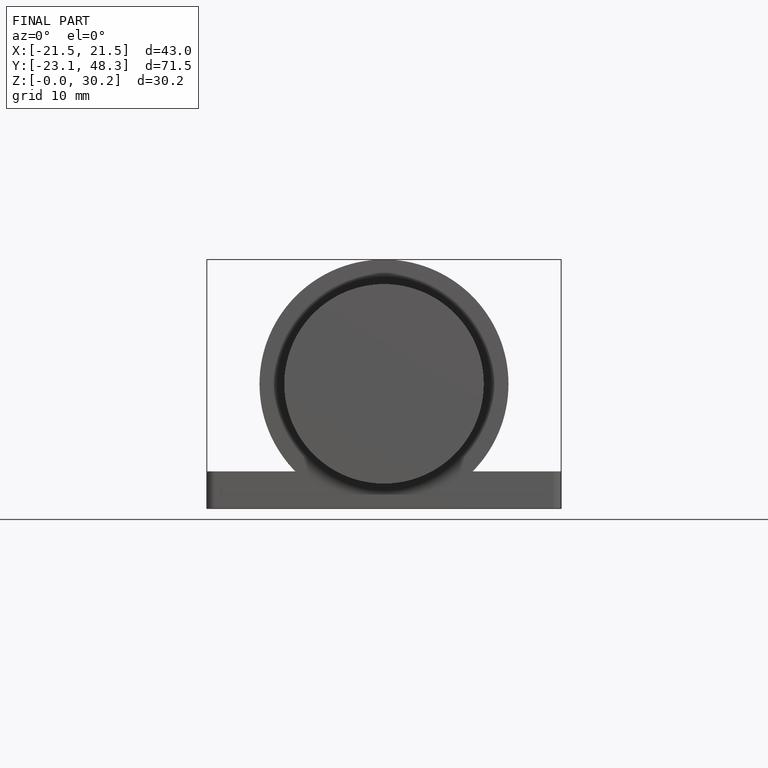
[diagram: finished part — front view with bounding-box wireframe]
